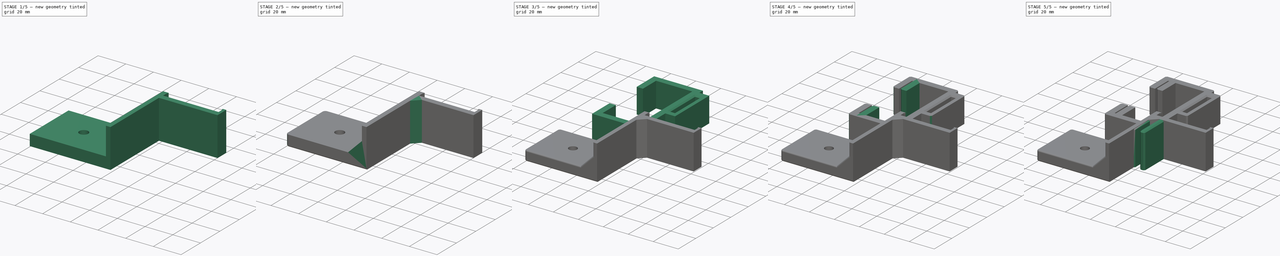
[diagram: build sequence overview — one tinted view per stage of 5, left to right]
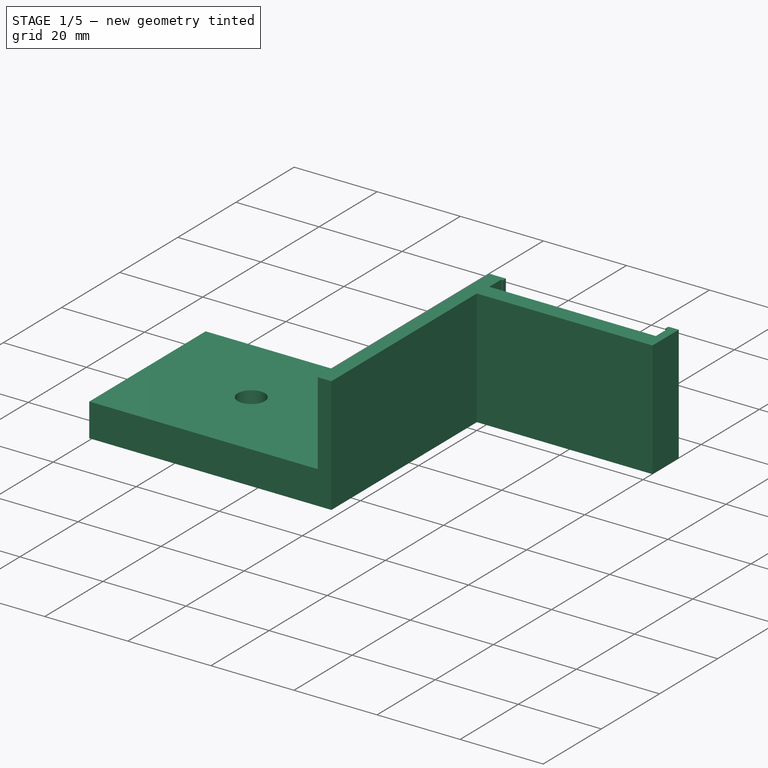
[diagram: stage 1 of 5 — iso view after this stage's code; geometry added in this stage tinted green]
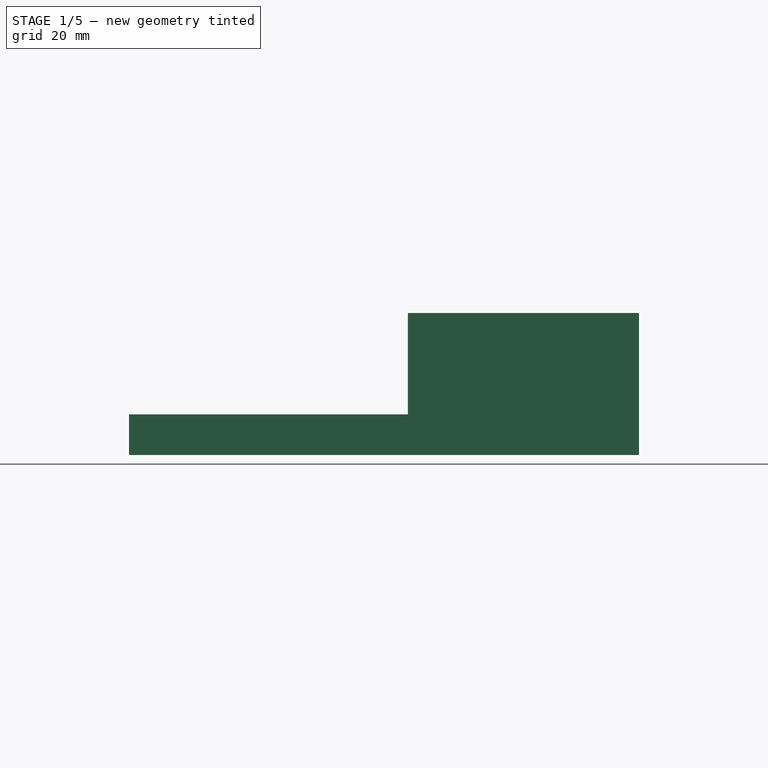
[diagram: stage 1 of 5 — front view after this stage's code; geometry added in this stage tinted green]
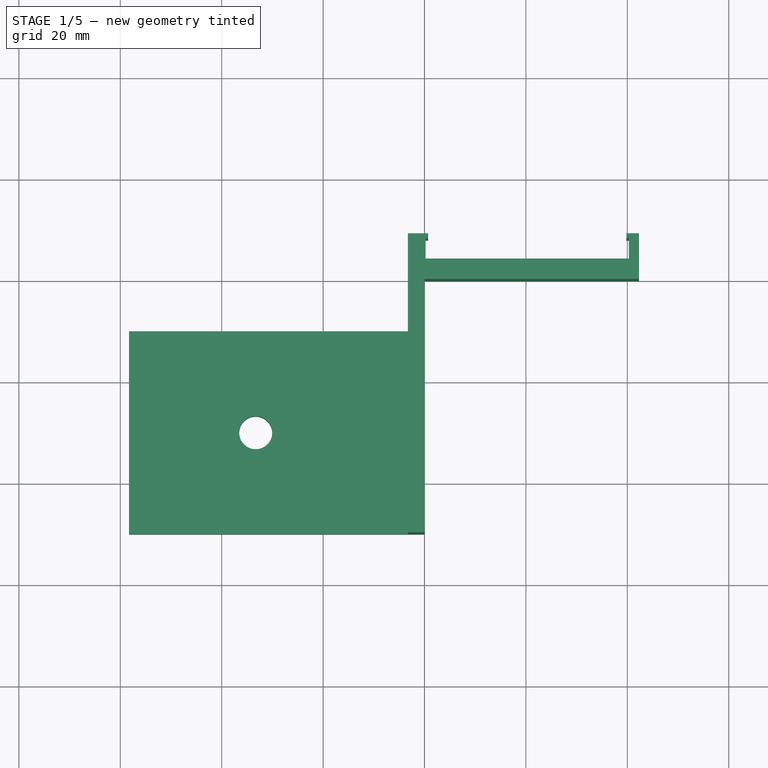
[diagram: stage 1 of 5 — top view after this stage's code; geometry added in this stage tinted green]
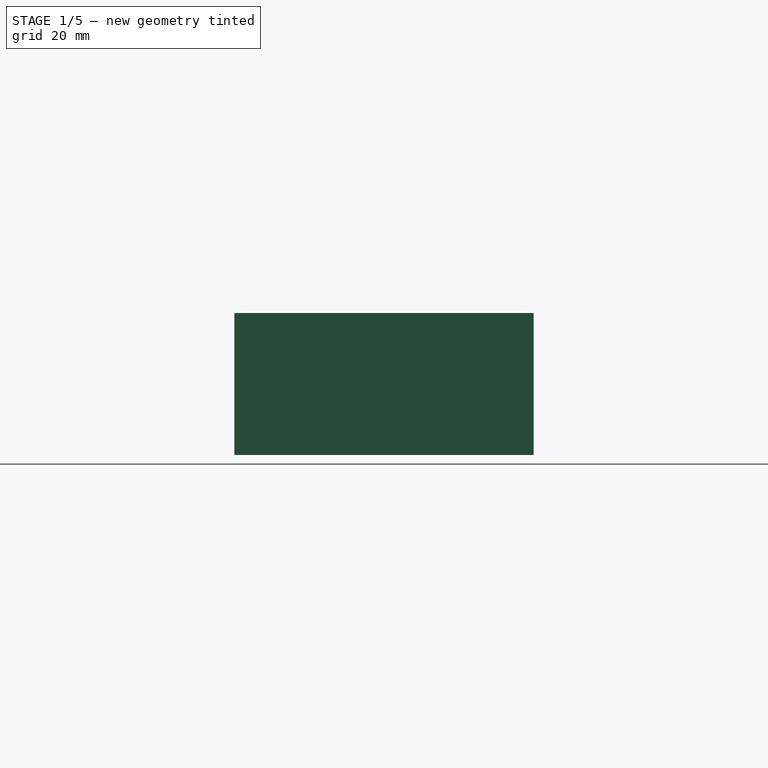
[diagram: stage 1 of 5 — right view after this stage's code; geometry added in this stage tinted green]
FCSTD DOCUMENT  (FreeCAD 1.1R43135 (Git))
Label: ender 3 v3 se rpi side mount
License: All rights reserved
LicenseURL: http://en.wikipedia.org/wiki/All_rights_reserved
objects: Sketcher::SketchObject×9, PartDesign::Pad×7, PartDesign::Chamfer×7, PartDesign::Body×4, App::Point×4, PartDesign::Fillet×4, PartDesign::Pocket×2
note: 82 computed .brp shape members not serialized (recipe doc carries the construction recipe); baked Part::Feature solids carry a one-line shape summary decoded from their .brp

FEATURE [PartDesign::Body] Body002  label="attachment40mfan"
  AllowCompound = false
  Group = -> [Sketch005,Pad003,Chamfer008,Chamfer009]
  Origin = -> Origin004
  Tip = -> Chamfer009
FEATURE [App::Point] Origin007
  Role = Origin
FEATURE [Sketcher::SketchObject] Sketch006
  ArcFitTolerance = 0
  AttachmentSupport = -> [XY_Plane003]
  ExternalTypes = [0]
  FullyConstrained = false
  MakeInternals = false
  MapMode = 5
  sketch-geometry (13):
    g0: LineSegment StartX=-3.29169 StartY=9 StartZ=0 EndX=0.708312 EndY=9 EndZ=0
    g1: LineSegment StartX=0.708312 StartY=8 StartZ=0 EndX=0.708312 EndY=9 EndZ=0
    g2: LineSegment StartX=0.708312 StartY=8 StartZ=0 EndX=0.208312 EndY=8 EndZ=0
    g3: LineSegment StartX=0.208312 StartY=8 StartZ=0 EndX=0.208312 EndY=4 EndZ=0
    g4: LineSegment StartX=0.208312 StartY=4 StartZ=0 EndX=40.3083 EndY=4 EndZ=0
    g5: LineSegment StartX=40.3083 StartY=4 StartZ=0 EndX=40.3083 EndY=8 EndZ=0
    g6: LineSegment StartX=40.3083 StartY=8 StartZ=0 EndX=39.8083 EndY=8 EndZ=0
    g7: LineSegment StartX=39.8083 StartY=8 StartZ=0 EndX=39.8083 EndY=9 EndZ=0
    g8: LineSegment StartX=39.8083 StartY=9 StartZ=0 EndX=42.3083 EndY=9 EndZ=0
    g9: LineSegment StartX=42.3083 StartY=9 StartZ=0 EndX=42.3083 EndY=0 EndZ=0
    g10: LineSegment StartX=-3.29169 StartY=9 StartZ=0 EndX=-3.29169 EndY=4 EndZ=0
    g11: LineSegment StartX=42.3083 StartY=0 StartZ=0 EndX=-3.29169 EndY=0 EndZ=0
    g12: LineSegment StartX=-3.29169 StartY=4 StartZ=0 EndX=-3.29169 EndY=0 EndZ=0
  constraints (39):
    c: Coincident(g2,g1)
    c: Coincident(g3,g2)
    c: Vertical(g3)
    c: Horizontal(g4)
    c: Coincident(g6,g5)
    c: Coincident(g7,g6)
    c: Vertical(g7)
    c: Coincident(g8,g7)
    c: Horizontal(g8)
    c: Coincident(g9,g8)
    c: Vertical(g9)
    c: Coincident(g1,g0)
    c: DistanceY(g5,g5) = 4
    c: DistanceY(g3,g3) = 4
    c: DistanceY(g9,g9) = 9
    c: DistanceX(g8,g8) = 2.5
    c: DistanceY(g7,g7) = 1
    c: DistanceX(g6,g6) = 0.5
    c: Parallel(g8,g6)
    c: Parallel(g9,g5)
    c: DistanceX(g2,g2) = 0.5
    c: DistanceY(g1,g1) = 1
    c: DistanceX(g0,g0) = 4
    c: Angle(g0,g1) = 1.5708
    c: Angle(g3,g2) = 1.5708
    c: Coincident(g4,g3)
    c: Coincident(g5,g4)
    c: Coincident(g10,g0)
    c: Parallel(g3,g10)
    c: Angle(g10,g0) = 1.5708
    c: Horizontal(g11)
    c: Coincident(g11,g9)
    c: DistanceY(g10,g10) = 5
    c: PointOnObject(g12,g-1)
    c: DistanceX(g4,g4) = 40.1
    c: Vertical(g12)
    c: Coincident(g11,g12)
    c: DistanceX(g11,g11) = 45.6  'ClampLength'
    c: Coincident(g12,g10)
FEATURE [PartDesign::Pad] Pad004
  Direction = (0,0,1)
  Length = 28
  Length2 = 10
  Profile = -> Sketch006
  ReferenceAxis = -> Sketch006 [N_Axis]
  Refine = true
  SideType = 0
  Suppressed = false
  Type = 0
  Type2 = 0
FEATURE [Sketcher::SketchObject] Sketch007
  ArcFitTolerance = 1e-06
  AttachmentSupport = -> [Pad004]
  ExternalGeometry = -> [Pad004]
  ExternalTypes = [0]
  FullyConstrained = true
  MakeInternals = false
  MapMode = 5
  Placement = pos=(0,0,0) rot=(1,0,0;1.5708rad)
  sketch-geometry (4):
    g0: LineSegment StartX=-3.29169 StartY=28 StartZ=0 EndX=-3.29169 EndY=0 EndZ=0
    g1: LineSegment StartX=-3.29169 StartY=0 StartZ=0 EndX=0 EndY=0 EndZ=0
    g2: LineSegment StartX=0 StartY=0 StartZ=0 EndX=0 EndY=28 EndZ=0
    g3: LineSegment StartX=0 StartY=28 StartZ=0 EndX=-3.29169 EndY=28 EndZ=0
  constraints (10):
    c: Coincident(g0,g1)
    c: Coincident(g1,g2)
    c: Coincident(g2,g3)
    c: Coincident(g3,g0)
    c: Vertical(g0)
    c: Vertical(g2)
    c: Horizontal(g1)
    c: Horizontal(g3)
    c: Coincident(g0,g-3)
    c: Coincident(g1,g-1)
FEATURE [PartDesign::Pad] Pad005
  BaseFeature = -> Pad004
  Direction = (0,-1,0)
  Length = 50
  Length2 = 10
  Profile = -> Sketch007
  ReferenceAxis = -> Sketch007 [N_Axis]
  Refine = true
  SideType = 0
  Suppressed = false
  Type = 0
  Type2 = 0
FEATURE [Sketcher::SketchObject] Sketch008
  ArcFitTolerance = 1e-06
  AttachmentSupport = -> [Pad005]
  ExternalGeometry = -> [Pad005]
  ExternalTypes = [0]
  FullyConstrained = true
  MakeInternals = false
  MapMode = 5
  Placement = pos=(-3.29169,0,0) rot=(0.57735,-0.57735,-0.57735;2.0944rad)
  sketch-geometry (4):
    g0: LineSegment StartX=10 StartY=0 StartZ=0 EndX=50 EndY=0 EndZ=0
    g1: LineSegment StartX=50 StartY=0 StartZ=0 EndX=50 EndY=8 EndZ=0
    g2: LineSegment StartX=50 StartY=8 StartZ=0 EndX=10 EndY=8 EndZ=0
    g3: LineSegment StartX=10 StartY=8 StartZ=0 EndX=10 EndY=0 EndZ=0
  constraints (11):
    c: Coincident(g0,g1)
    c: Coincident(g1,g2)
    c: Coincident(g2,g3)
    c: Coincident(g3,g0)
    c: Horizontal(g0)
    c: Horizontal(g2)
    c: Vertical(g1)
    c: Vertical(g3)
    c: Distance(g1,g1) = 8
    c: DistanceX(g0,g0) = 40
    c: Coincident(g-3,g0)
FEATURE [PartDesign::Pad] Pad006
  BaseFeature = -> Pad005
  Direction = (-1,0,0)
  Length = 55
  Length2 = 10
  Profile = -> Sketch008
  ReferenceAxis = -> Sketch008 [N_Axis]
  Refine = true
  SideType = 0
  Suppressed = false
  Type = 0
  Type2 = 0
FEATURE [Sketcher::SketchObject] Sketch009
  ArcFitTolerance = 1e-06
  AttachmentSupport = -> [Pad006]
  ExternalGeometry = -> [Pad006]
  ExternalTypes = [0]
  FullyConstrained = true
  MakeInternals = false
  MapMode = 5
  Placement = pos=(0,0,9e-16) rot=(1,0,0;3.14159rad)
  sketch-geometry (1):
    g0: Circle CenterX=-33.2917 CenterY=30 CenterZ=0 NormalX=0 NormalY=0 NormalZ=1 AngleXU=0 Radius=3.25
  constraints (3):
    c: Diameter(g0) = 6.5
    c: DistanceX(g-3,g0) = 25
    c: DistanceY(g0,g-3) = 20
FEATURE [PartDesign::Pocket] Pocket001
  BaseFeature = -> Pad006
  Direction = (0,0,1)
  Length = 5
  Length2 = 5
  Profile = -> Sketch009
  ReferenceAxis = -> Sketch009 [N_Axis]
  Refine = true
  SideType = 0
  Suppressed = false
  Type = 1
  Type2 = 0
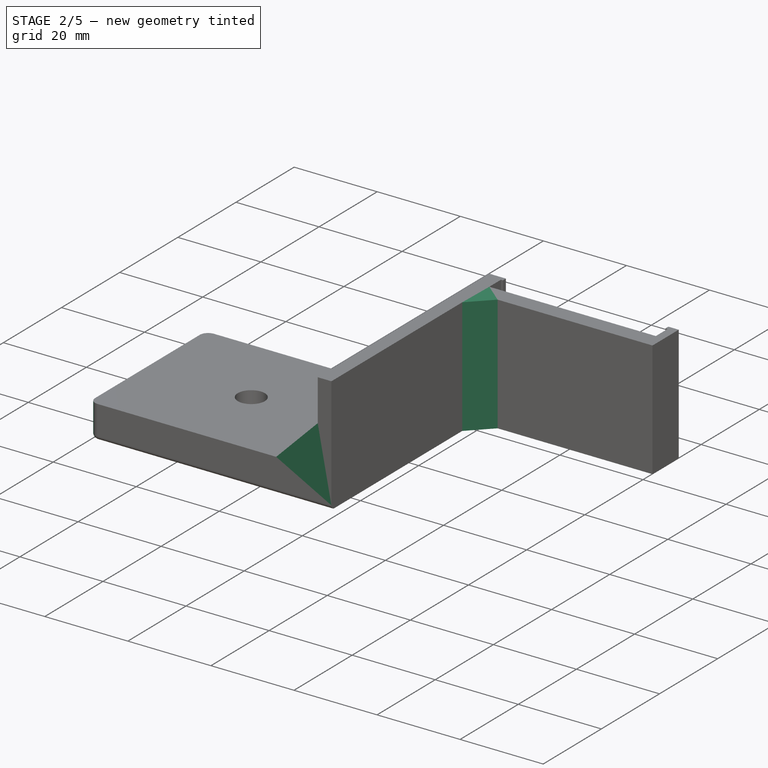
[diagram: stage 2 of 5 — iso view after this stage's code; geometry added in this stage tinted green]
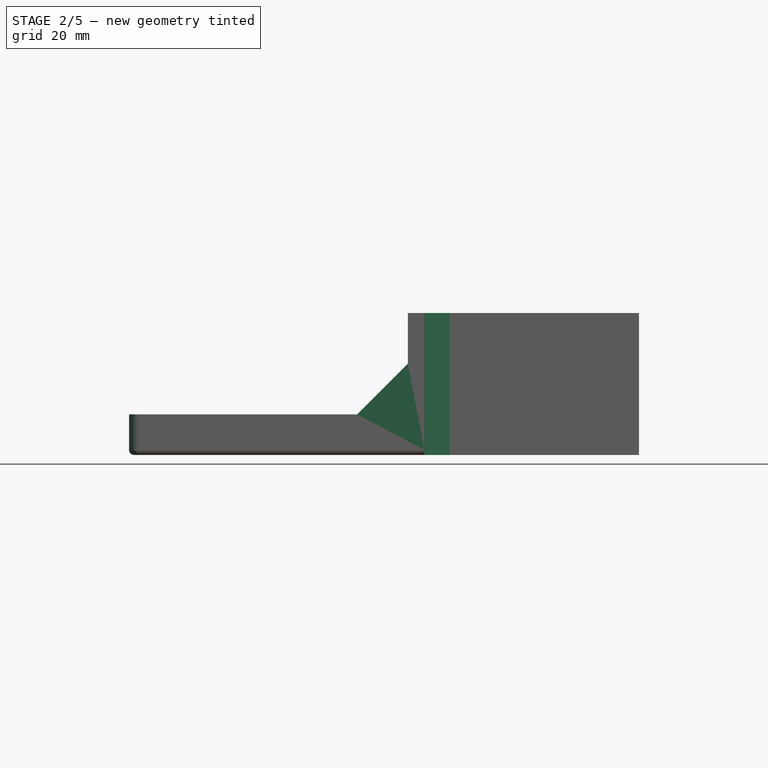
[diagram: stage 2 of 5 — front view after this stage's code; geometry added in this stage tinted green]
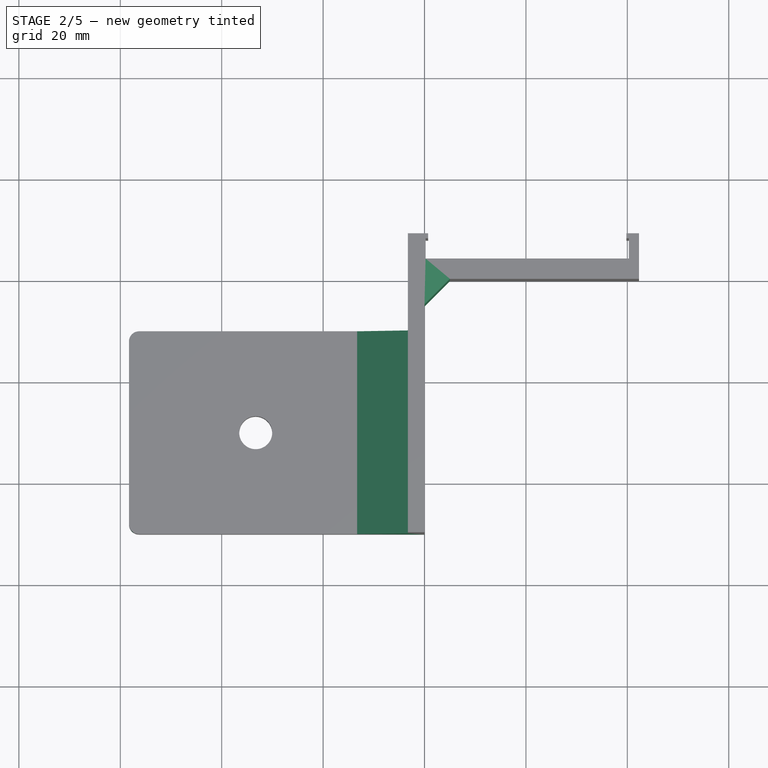
[diagram: stage 2 of 5 — top view after this stage's code; geometry added in this stage tinted green]
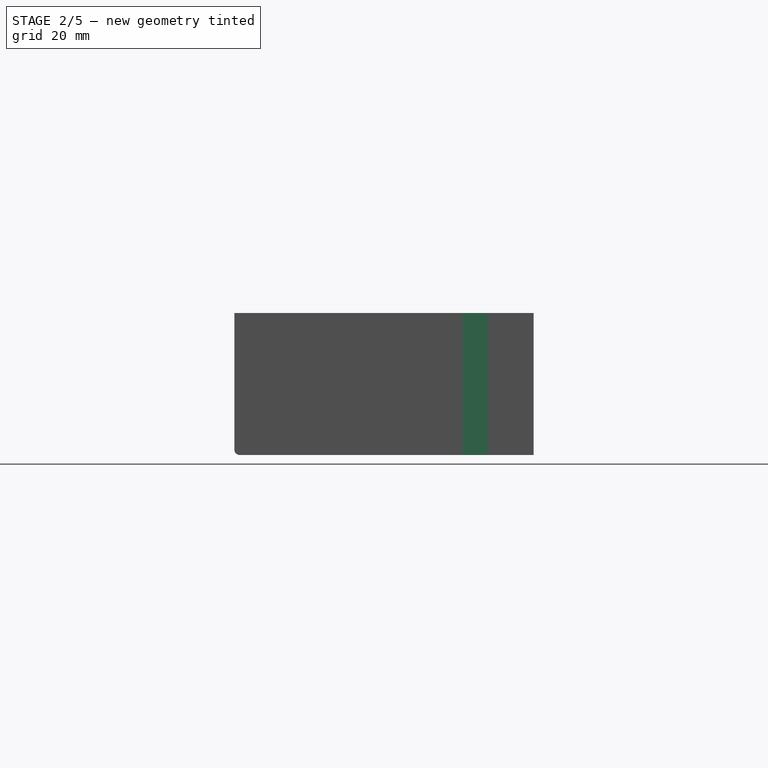
[diagram: stage 2 of 5 — right view after this stage's code; geometry added in this stage tinted green]
FEATURE [PartDesign::Chamfer] Chamfer010
  Angle = 45
  Base = -> Pocket001 [Edge48]
  BaseFeature = -> Pocket001
  ChamferType = 0
  FlipDirection = false
  Refine = true
  Size = 5
  Size2 = 1
  SupportTransform = false
  Suppressed = false
  UseAllEdges = false
FEATURE [PartDesign::Chamfer] Chamfer011
  Angle = 45
  Base = -> Chamfer010 [Edge40]
  BaseFeature = -> Chamfer010
  ChamferType = 0
  FlipDirection = false
  Refine = true
  Size = 10
  Size2 = 1
  SupportTransform = false
  Suppressed = false
  UseAllEdges = false
FEATURE [PartDesign::Fillet] Fillet
  Base = -> Chamfer011 [Edge6,Edge35]
  BaseFeature = -> Chamfer011
  Radius = 2
  Refine = true
  SupportTransform = false
  Suppressed = false
  UseAllEdges = false
FEATURE [PartDesign::Fillet] Fillet001
  Base = -> Fillet [Edge4,Edge19,Edge23,Edge25]
  BaseFeature = -> Fillet
  Radius = 1
  Refine = true
  SupportTransform = false
  Suppressed = false
  UseAllEdges = false
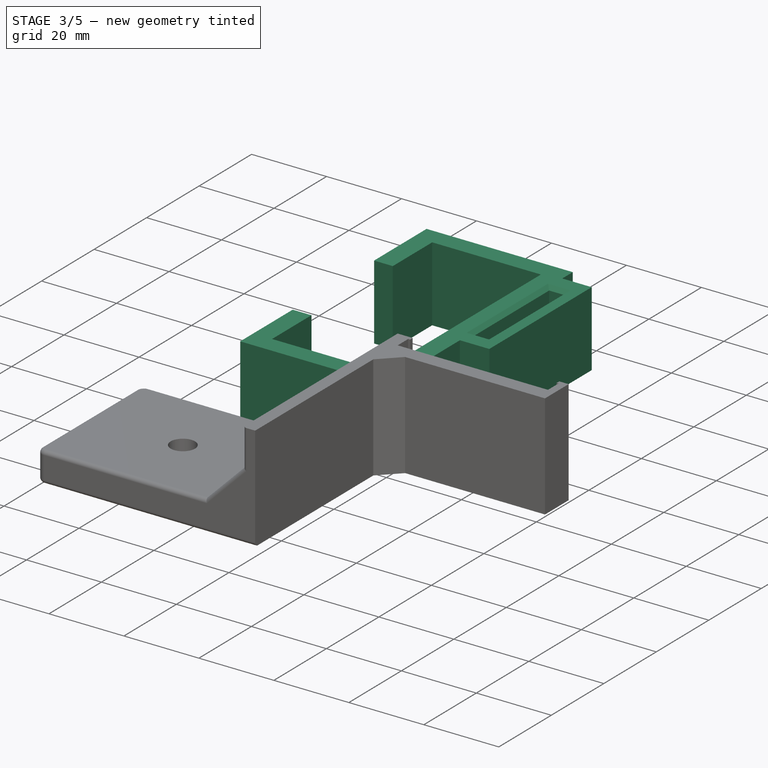
[diagram: stage 3 of 5 — iso view after this stage's code; geometry added in this stage tinted green]
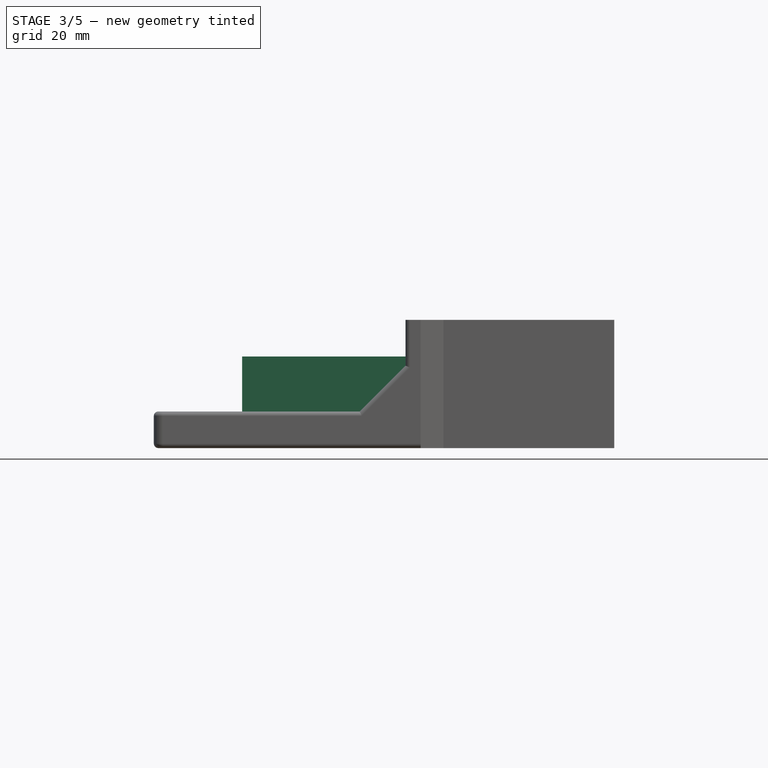
[diagram: stage 3 of 5 — front view after this stage's code; geometry added in this stage tinted green]
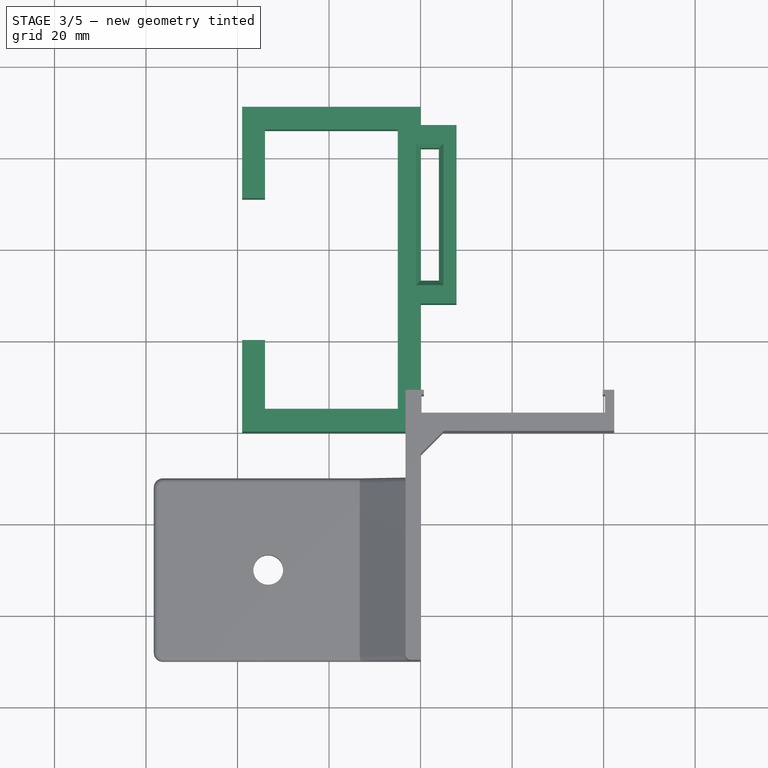
[diagram: stage 3 of 5 — top view after this stage's code; geometry added in this stage tinted green]
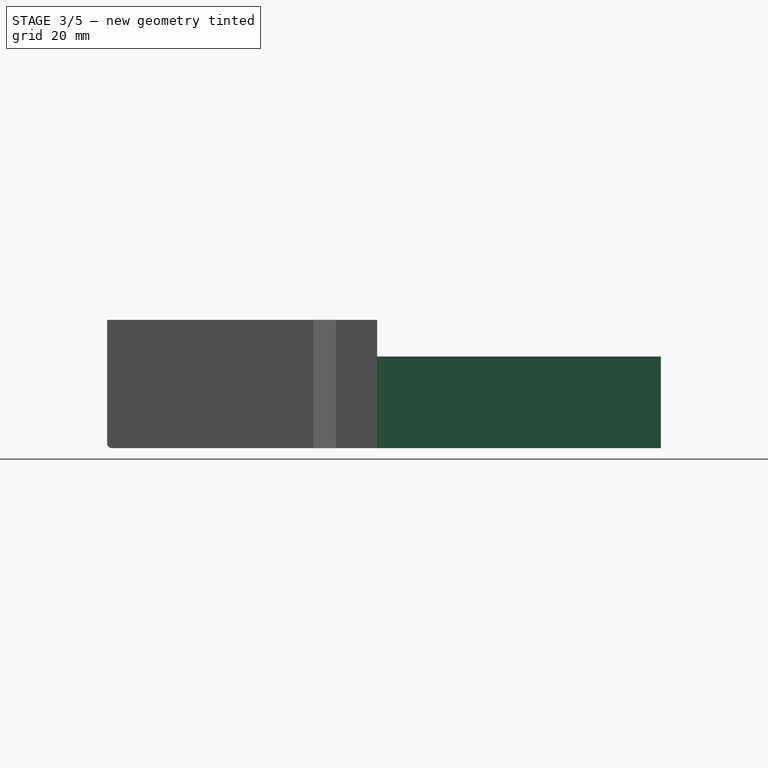
[diagram: stage 3 of 5 — right view after this stage's code; geometry added in this stage tinted green]
FEATURE [PartDesign::Body] Body001  label="attachment"
  AllowCompound = false
  Group = -> [Sketch004,Pad002,Chamfer,Chamfer007]
  Origin = -> Origin001
  Tip = -> Chamfer007
FEATURE [App::Point] Origin002  label="Origin"
  Role = Origin
FEATURE [App::Point] Origin003  label="Origin"
  Role = Origin
FEATURE [App::Point] Origin005
  Role = Origin
FEATURE [Sketcher::SketchObject] Sketch005
  ArcFitTolerance = 0
  AttachmentSupport = -> [XY_Plane002]
  ExternalTypes = [0]
  FullyConstrained = true
  MakeInternals = false
  MapMode = 5
  sketch-geometry (20):
    g0: LineSegment StartX=-39 StartY=71 StartZ=0 EndX=0 EndY=71 EndZ=0
    g1: LineSegment StartX=0 StartY=71 StartZ=0 EndX=0 EndY=67 EndZ=0
    g2: LineSegment StartX=0 StartY=0 StartZ=0 EndX=-39 EndY=0 EndZ=0
    g3: LineSegment StartX=-39 StartY=0 StartZ=0 EndX=-39 EndY=20 EndZ=0
    g4: LineSegment StartX=-39 StartY=20 StartZ=0 EndX=-34 EndY=20 EndZ=0
    g5: LineSegment StartX=-34 StartY=20 StartZ=0 EndX=-34 EndY=5 EndZ=0
    g6: LineSegment StartX=-34 StartY=5 StartZ=0 EndX=-5 EndY=5 EndZ=0
    g7: LineSegment StartX=-5 StartY=5 StartZ=0 EndX=-5 EndY=66 EndZ=0
    g8: LineSegment StartX=-5 StartY=66 StartZ=0 EndX=-34 EndY=66 EndZ=0
    g9: LineSegment StartX=-34 StartY=66 StartZ=0 EndX=-34 EndY=51 EndZ=0
    g10: LineSegment StartX=-34 StartY=51 StartZ=0 EndX=-39 EndY=51 EndZ=0
    g11: LineSegment StartX=-39 StartY=51 StartZ=0 EndX=-39 EndY=71 EndZ=0
    g12: LineSegment StartX=0 StartY=28 StartZ=0 EndX=7.85 EndY=28 EndZ=0
    g13: LineSegment StartX=7.85 StartY=28 StartZ=0 EndX=7.85 EndY=67 EndZ=0
    g14: LineSegment StartX=7.85 StartY=67 StartZ=0 EndX=0 EndY=67 EndZ=0
    g15: LineSegment StartX=0 StartY=62 StartZ=0 EndX=4 EndY=62 EndZ=0
    g16: LineSegment StartX=4 StartY=62 StartZ=0 EndX=4 EndY=33 EndZ=0
    g17: LineSegment StartX=4 StartY=33 StartZ=0 EndX=0 EndY=33 EndZ=0
    g18: LineSegment StartX=0 StartY=62 StartZ=0 EndX=0 EndY=33 EndZ=0
    g19: LineSegment StartX=0 StartY=28 StartZ=0 EndX=0 EndY=0 EndZ=0
  constraints (59):
    c: Horizontal(g0)
    c: Coincident(g0,g1)
    c: Vertical(g1)
    c: Coincident(g19,g2)
    c: Horizontal(g2)
    c: Coincident(g2,g3)
    c: Vertical(g3)
    c: Coincident(g3,g4)
    c: Horizontal(g4)
    c: Coincident(g4,g5)
    c: Vertical(g5)
    c: Coincident(g5,g6)
    c: Horizontal(g6)
    c: Coincident(g6,g7)
    c: Vertical(g7)
    c: Coincident(g7,g8)
    c: Horizontal(g8)
    c: Coincident(g8,g9)
    c: Vertical(g9)
    c: Coincident(g9,g10)
    c: Horizontal(g10)
    c: Coincident(g10,g11)
    c: Coincident(g11,g0)
    c: Vertical(g11)
    c: Vertical(g10,g3)
    c: Equal(g10,g4)
    c: Distance(g10,g10) = 5
    c: DistanceY(g2,g5) = 5
    c: DistanceY(g8,g0) = 5
    c: DistanceX(g7,g0) = 5
    c: DistanceX(g8,g8) = 29
    c: Equal(g9,g5)
    c: DistanceY(g9,g9) = 15
    c: DistanceY(g7,g7) = 61
    c: Coincident(g19,g-1)
    c: PointOnObject(g12,g1)
    c: Horizontal(g12)
    c: Coincident(g12,g13)
    c: Vertical(g13)
    c: Coincident(g13,g14)
    c: Horizontal(g14)
    c: Horizontal(g15)
    c: Coincident(g15,g16)
    c: Vertical(g16)
    c: Coincident(g16,g17)
    c: PointOnObject(g17,g1)
    c: Horizontal(g17)
    c: Coincident(g1,g14)
    c: DistanceY(g15,g1) = 5
    c: Distance(g17,g12) = 5
    c: DistanceX(g16,g12) = 3.85
    c: DistanceY(g16,g16) = 29
    c: Coincident(g15,g18)
    c: Vertical(g18)
    c: Coincident(g18,g17)
    c: DistanceX(g15,g15) = 4
    c: DistanceY(g2,g12) = 28
    c: PointOnObject(g19,g-2)
    c: Coincident(g12,g19)
FEATURE [PartDesign::Pad] Pad003
  Direction = (0,0,1)
  Length = 20
  Length2 = 10
  Profile = -> Sketch005
  ReferenceAxis = -> Sketch005 [N_Axis]
  SideType = 0
  Suppressed = false
  Type = 0
  Type2 = 0
FEATURE [PartDesign::Chamfer] Chamfer008
  Angle = 45
  Base = -> Pad003 [Edge59,Edge54,Edge57,Edge51,Edge58,Edge55,Edge60,Edge52]
  BaseFeature = -> Pad003
  ChamferType = 0
  FlipDirection = false
  Size = 1
  Size2 = 1
  SupportTransform = false
  Suppressed = false
  UseAllEdges = false
FEATURE [PartDesign::Fillet] Fillet002
  Base = -> Fillet001 [Edge3,Edge5,Edge7]
  BaseFeature = -> Fillet001
  Radius = 1
  Refine = true
  SupportTransform = false
  Suppressed = false
  UseAllEdges = false
FEATURE [PartDesign::Fillet] Fillet003
  Base = -> Fillet002 [Edge67]
  BaseFeature = -> Fillet002
  Radius = 1
  Refine = true
  SupportTransform = false
  Suppressed = false
  UseAllEdges = false
FEATURE [PartDesign::Body] Body003  label="mount001"
  AllowCompound = false
  Group = -> [Sketch006,Pad004,Sketch007,Pad005,Sketch008,Pad006,Sketch009,Pocket001,Chamfer010,Chamfer011,Fillet,Fillet001,Fillet002,Fillet003]
  Origin = -> Origin006
  Placement = pos=(0,-13.599,0) rot=(0,1,0;3.05258rad)
  Tip = -> Fillet003
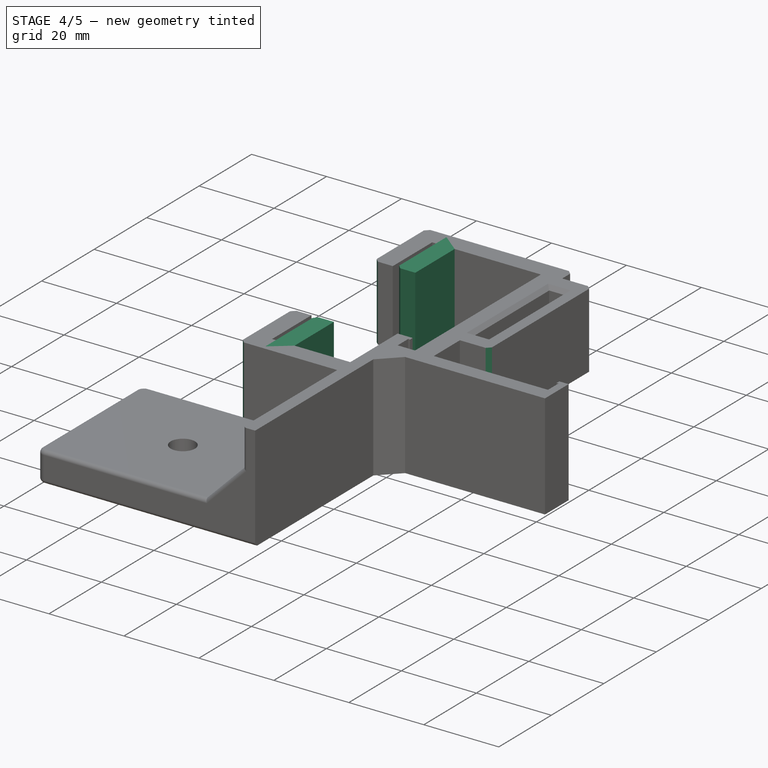
[diagram: stage 4 of 5 — iso view after this stage's code; geometry added in this stage tinted green]
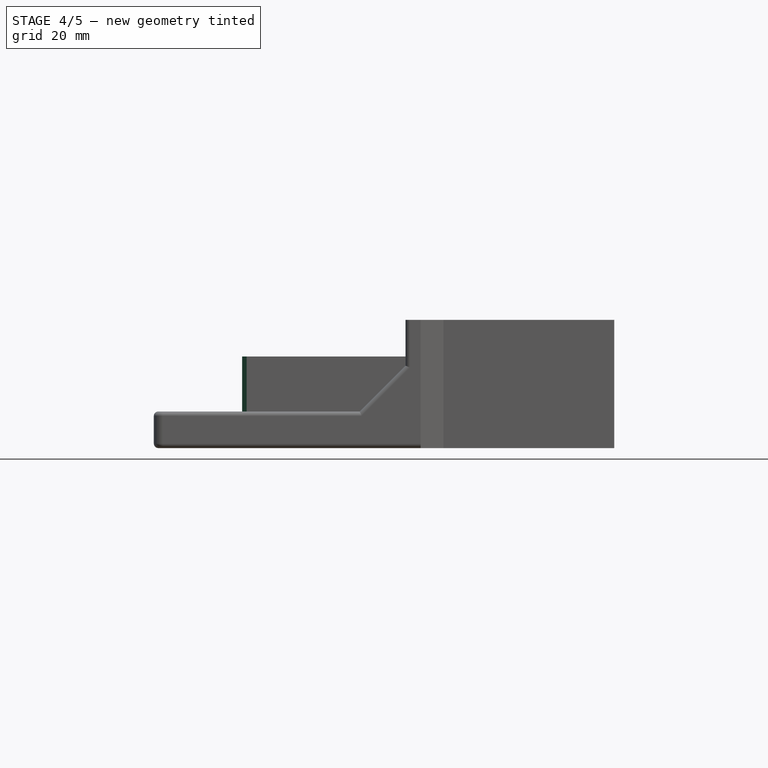
[diagram: stage 4 of 5 — front view after this stage's code; geometry added in this stage tinted green]
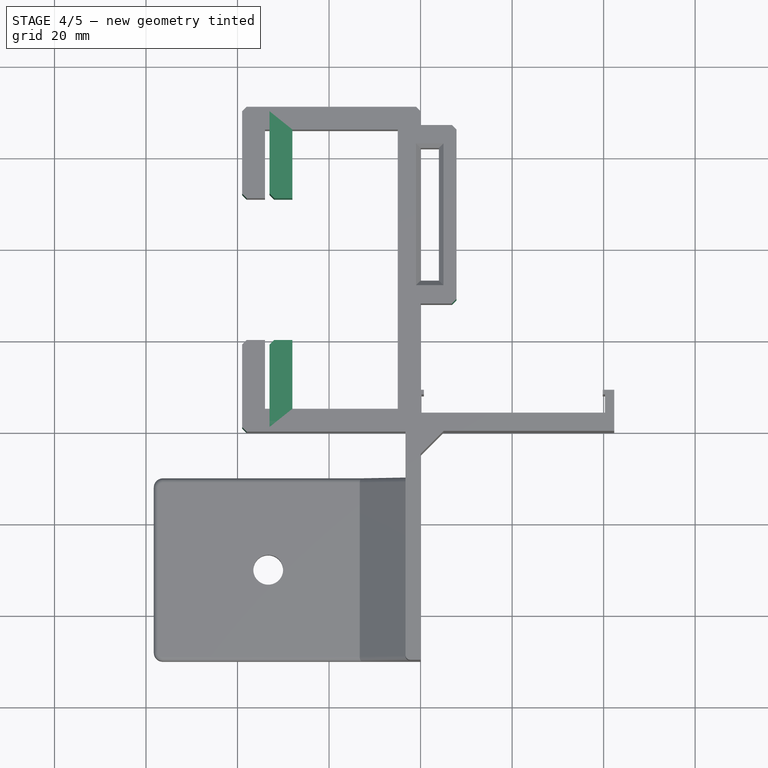
[diagram: stage 4 of 5 — top view after this stage's code; geometry added in this stage tinted green]
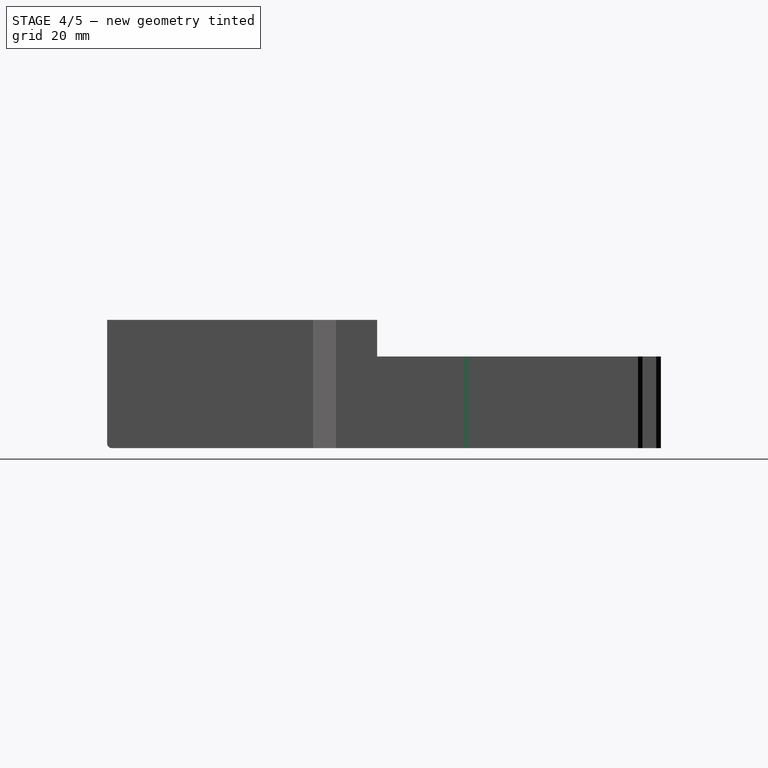
[diagram: stage 4 of 5 — right view after this stage's code; geometry added in this stage tinted green]
FEATURE [Sketcher::SketchObject] Sketch004
  ArcFitTolerance = 0
  AttachmentSupport = -> [XY_Plane]
  ExternalTypes = [0]
  FullyConstrained = true
  MakeInternals = false
  MapMode = 5
  sketch-geometry (20):
    g0: LineSegment StartX=-33 StartY=71 StartZ=0 EndX=0 EndY=71 EndZ=0
    g1: LineSegment StartX=0 StartY=71 StartZ=0 EndX=0 EndY=67 EndZ=0
    g2: LineSegment StartX=0 StartY=0 StartZ=0 EndX=-33 EndY=0 EndZ=0
    g3: LineSegment StartX=-33 StartY=0 StartZ=0 EndX=-33 EndY=20 EndZ=0
    g4: LineSegment StartX=-33 StartY=20 StartZ=0 EndX=-28 EndY=20 EndZ=0
    g5: LineSegment StartX=-28 StartY=20 StartZ=0 EndX=-28 EndY=5 EndZ=0
    g6: LineSegment StartX=-28 StartY=5 StartZ=0 EndX=-5 EndY=5 EndZ=0
    g7: LineSegment StartX=-5 StartY=5 StartZ=0 EndX=-5 EndY=66 EndZ=0
    g8: LineSegment StartX=-5 StartY=66 StartZ=0 EndX=-28 EndY=66 EndZ=0
    g9: LineSegment StartX=-28 StartY=66 StartZ=0 EndX=-28 EndY=51 EndZ=0
    g10: LineSegment StartX=-28 StartY=51 StartZ=0 EndX=-33 EndY=51 EndZ=0
    g11: LineSegment StartX=-33 StartY=51 StartZ=0 EndX=-33 EndY=71 EndZ=0
    g12: LineSegment StartX=0 StartY=28 StartZ=0 EndX=7.85 EndY=28 EndZ=0
    g13: LineSegment StartX=7.85 StartY=28 StartZ=0 EndX=7.85 EndY=67 EndZ=0
    g14: LineSegment StartX=7.85 StartY=67 StartZ=0 EndX=0 EndY=67 EndZ=0
    g15: LineSegment StartX=0 StartY=62 StartZ=0 EndX=4 EndY=62 EndZ=0
    g16: LineSegment StartX=4 StartY=62 StartZ=0 EndX=4 EndY=33 EndZ=0
    g17: LineSegment StartX=4 StartY=33 StartZ=0 EndX=0 EndY=33 EndZ=0
    g18: LineSegment StartX=0 StartY=62 StartZ=0 EndX=0 EndY=33 EndZ=0
    g19: LineSegment StartX=0 StartY=28 StartZ=0 EndX=0 EndY=0 EndZ=0
  constraints (59):
    c: Horizontal(g0)
    c: Coincident(g0,g1)
    c: Vertical(g1)
    c: Coincident(g19,g2)
    c: Horizontal(g2)
    c: Coincident(g2,g3)
    c: Vertical(g3)
    c: Coincident(g3,g4)
    c: Horizontal(g4)
    c: Coincident(g4,g5)
    c: Vertical(g5)
    c: Coincident(g5,g6)
    c: Horizontal(g6)
    c: Coincident(g6,g7)
    c: Vertical(g7)
    c: Coincident(g7,g8)
    c: Horizontal(g8)
    c: Coincident(g8,g9)
    c: Vertical(g9)
    c: Coincident(g9,g10)
    c: Horizontal(g10)
    c: Coincident(g10,g11)
    c: Coincident(g11,g0)
    c: Vertical(g11)
    c: Vertical(g10,g3)
    c: Equal(g10,g4)
    c: Distance(g10,g10) = 5
    c: DistanceY(g2,g5) = 5
    c: DistanceY(g8,g0) = 5
    c: DistanceX(g7,g0) = 5
    c: DistanceX(g8,g8) = 23
    c: Equal(g9,g5)
    c: DistanceY(g9,g9) = 15
    c: DistanceY(g7,g7) = 61
    c: Coincident(g19,g-1)
    c: PointOnObject(g12,g1)
    c: Horizontal(g12)
    c: Coincident(g12,g13)
    c: Vertical(g13)
    c: Coincident(g13,g14)
    c: Horizontal(g14)
    c: Horizontal(g15)
    c: Coincident(g15,g16)
    c: Vertical(g16)
    c: Coincident(g16,g17)
    c: PointOnObject(g17,g1)
    c: Horizontal(g17)
    c: Coincident(g1,g14)
    c: DistanceY(g15,g1) = 5
    c: Distance(g17,g12) = 5
    c: DistanceX(g16,g12) = 3.85
    c: DistanceY(g16,g16) = 29
    c: Coincident(g15,g18)
    c: Vertical(g18)
    c: Coincident(g18,g17)
    c: DistanceX(g15,g15) = 4
    c: DistanceY(g2,g12) = 28
    c: PointOnObject(g19,g-2)
    c: Coincident(g12,g19)
FEATURE [PartDesign::Pad] Pad002
  Direction = (0,0,1)
  Length = 20
  Length2 = 10
  Profile = -> Sketch004
  ReferenceAxis = -> Sketch004 [N_Axis]
  SideType = 0
  Suppressed = false
  Type = 0
  Type2 = 0
FEATURE [PartDesign::Body] Body  label="mount"
  AllowCompound = false
  Group = -> [Sketch,Pad,Sketch002,Pad001,Sketch003,Pocket,Chamfer006]
  Origin = -> Origin
  Tip = -> Chamfer006
FEATURE [PartDesign::Chamfer] Chamfer
  Angle = 45
  Base = -> Pad002 [Edge59,Edge54,Edge57,Edge51,Edge58,Edge55,Edge60,Edge52]
  BaseFeature = -> Pad002
  ChamferType = 0
  FlipDirection = false
  Size = 1
  Size2 = 1
  SupportTransform = false
  Suppressed = false
  UseAllEdges = false
FEATURE [PartDesign::Chamfer] Chamfer007
  Angle = 45
  Base = -> Chamfer [Edge73,Edge75,Edge76,Edge72,Edge71,Edge64,Edge63,Edge62]
  BaseFeature = -> Chamfer
  ChamferType = 0
  FlipDirection = false
  Size = 1
  Size2 = 1
  SupportTransform = false
  Suppressed = false
  UseAllEdges = false
FEATURE [PartDesign::Chamfer] Chamfer009
  Angle = 45
  Base = -> Chamfer008 [Edge73,Edge75,Edge76,Edge72,Edge71,Edge64,Edge63,Edge62]
  BaseFeature = -> Chamfer008
  ChamferType = 0
  FlipDirection = false
  Size = 1
  Size2 = 1
  SupportTransform = false
  Suppressed = false
  UseAllEdges = false
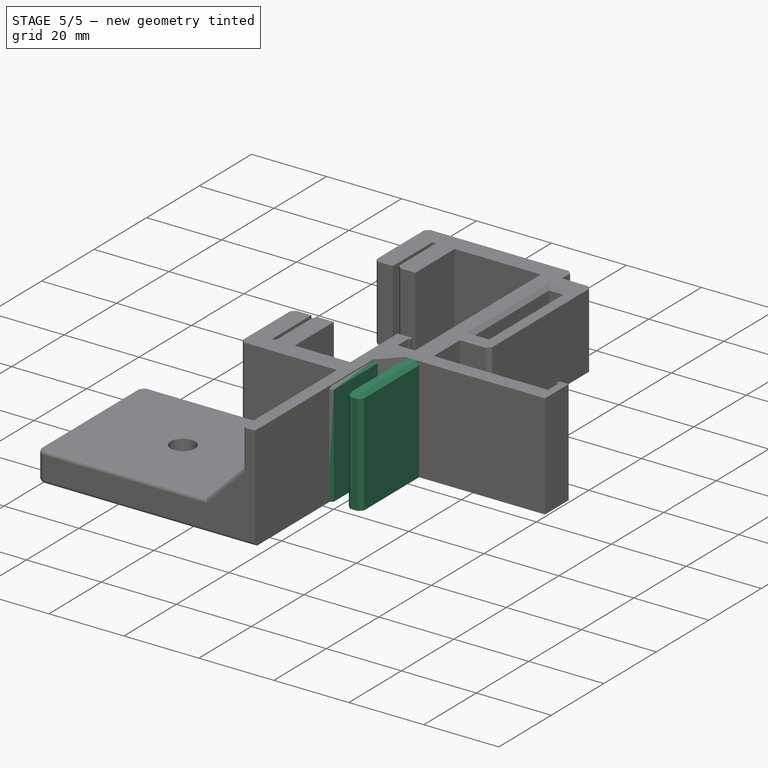
[diagram: stage 5 of 5 — iso view after this stage's code; geometry added in this stage tinted green]
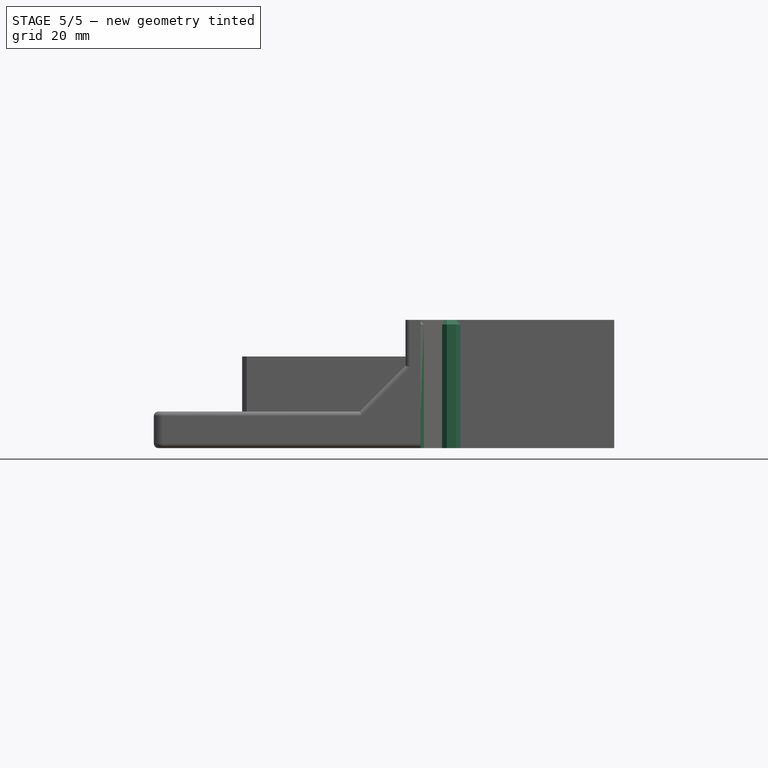
[diagram: stage 5 of 5 — front view after this stage's code; geometry added in this stage tinted green]
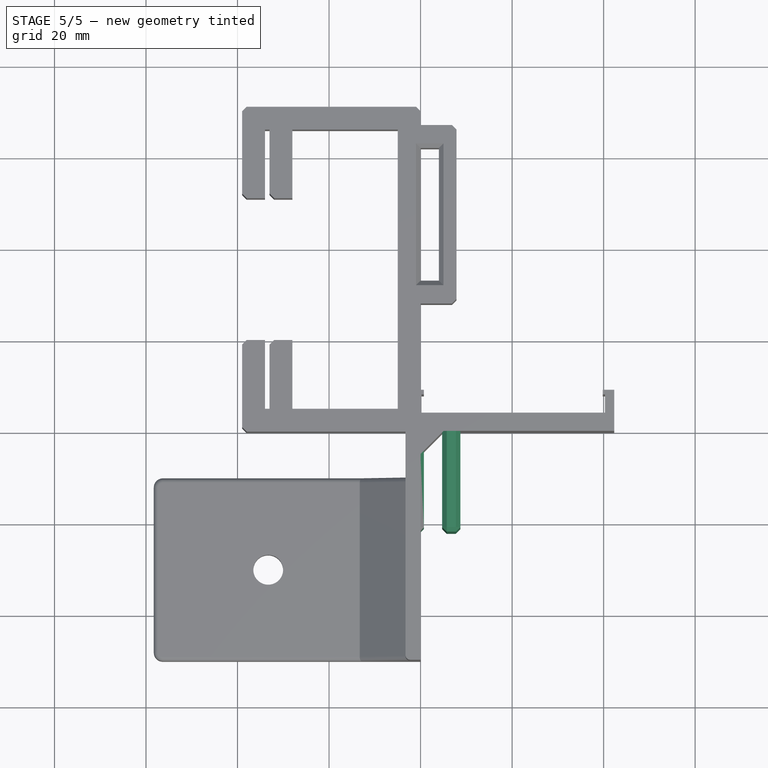
[diagram: stage 5 of 5 — top view after this stage's code; geometry added in this stage tinted green]
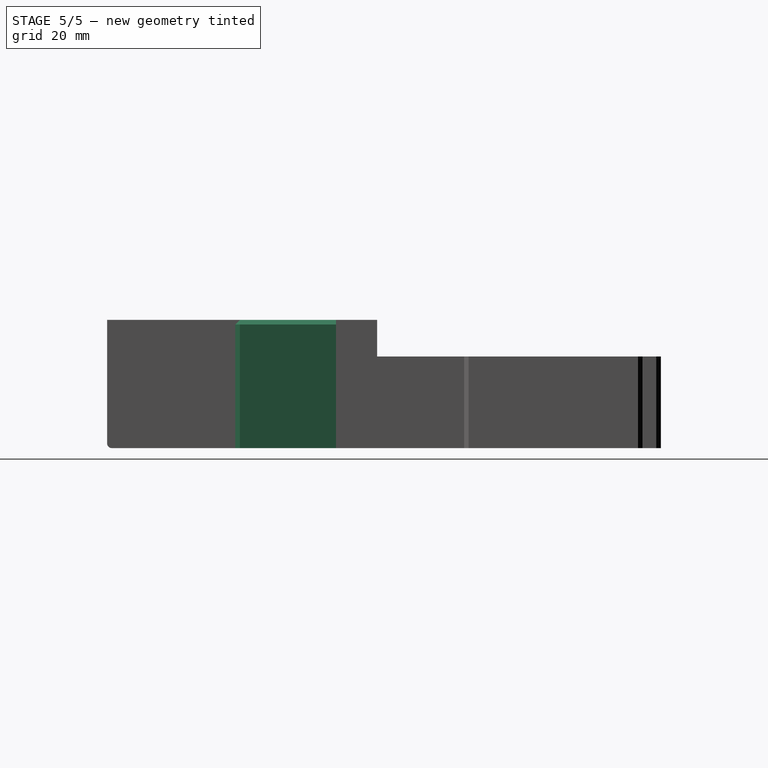
[diagram: stage 5 of 5 — right view after this stage's code; geometry added in this stage tinted green]
FEATURE [Sketcher::SketchObject] Sketch
  ArcFitTolerance = 0
  AttachmentSupport = -> [XY_Plane001]
  ExternalTypes = [0]
  FullyConstrained = false
  MakeInternals = false
  MapMode = 5
  sketch-geometry (13):
    g0: LineSegment StartX=-3.29169 StartY=9 StartZ=0 EndX=0.708312 EndY=9 EndZ=0
    g1: LineSegment StartX=0.708312 StartY=8 StartZ=0 EndX=0.708312 EndY=9 EndZ=0
    g2: LineSegment StartX=0.708312 StartY=8 StartZ=0 EndX=0.208312 EndY=8 EndZ=0
    g3: LineSegment StartX=0.208312 StartY=8 StartZ=0 EndX=0.208312 EndY=4 EndZ=0
    g4: LineSegment StartX=0.208312 StartY=4 StartZ=0 EndX=40.3083 EndY=4 EndZ=0
    g5: LineSegment StartX=40.3083 StartY=4 StartZ=0 EndX=40.3083 EndY=8 EndZ=0
    g6: LineSegment StartX=40.3083 StartY=8 StartZ=0 EndX=39.8083 EndY=8 EndZ=0
    g7: LineSegment StartX=39.8083 StartY=8 StartZ=0 EndX=39.8083 EndY=9 EndZ=0
    g8: LineSegment StartX=39.8083 StartY=9 StartZ=0 EndX=42.3083 EndY=9 EndZ=0
    g9: LineSegment StartX=42.3083 StartY=9 StartZ=0 EndX=42.3083 EndY=0 EndZ=0
    g10: LineSegment StartX=-3.29169 StartY=9 StartZ=0 EndX=-3.29169 EndY=4 EndZ=0
    g11: LineSegment StartX=42.3083 StartY=0 StartZ=0 EndX=-3.29169 EndY=0 EndZ=0
    g12: LineSegment StartX=-3.29169 StartY=4 StartZ=0 EndX=-3.29169 EndY=0 EndZ=0
  constraints (39):
    c: Coincident(g2,g1)
    c: Coincident(g3,g2)
    c: Vertical(g3)
    c: Horizontal(g4)
    c: Coincident(g6,g5)
    c: Coincident(g7,g6)
    c: Vertical(g7)
    c: Coincident(g8,g7)
    c: Horizontal(g8)
    c: Coincident(g9,g8)
    c: Vertical(g9)
    c: Coincident(g1,g0)
    c: DistanceY(g5,g5) = 4
    c: DistanceY(g3,g3) = 4
    c: DistanceY(g9,g9) = 9
    c: DistanceX(g8,g8) = 2.5
    c: DistanceY(g7,g7) = 1
    c: DistanceX(g6,g6) = 0.5
    c: Parallel(g8,g6)
    c: Parallel(g9,g5)
    c: DistanceX(g2,g2) = 0.5
    c: DistanceY(g1,g1) = 1
    c: DistanceX(g0,g0) = 4
    c: Angle(g0,g1) = 1.5708
    c: Angle(g3,g2) = 1.5708
    c: Coincident(g4,g3)
    c: Coincident(g5,g4)
    c: Coincident(g10,g0)
    c: Parallel(g3,g10)
    c: Angle(g10,g0) = 1.5708
    c: Horizontal(g11)
    c: Coincident(g11,g9)
    c: DistanceY(g10,g10) = 5
    c: PointOnObject(g12,g-1)
    c: DistanceX(g4,g4) = 40.1
    c: Vertical(g12)
    c: Coincident(g11,g12)
    c: DistanceX(g11,g11) = 45.6  'ClampLength'
    c: Coincident(g12,g10)
FEATURE [PartDesign::Pad] Pad
  Direction = (0,0,1)
  Length = 28
  Length2 = 10
  Profile = -> Sketch
  ReferenceAxis = -> Sketch [N_Axis]
  Refine = true
  SideType = 0
  Suppressed = false
  Type = 0
  Type2 = 0
FEATURE [Sketcher::SketchObject] Sketch002
  ArcFitTolerance = 0
  AttachmentSupport = -> [Pad]
  ExternalGeometry = -> [Pad]
  ExternalTypes = [0]
  FullyConstrained = true
  MakeInternals = false
  MapMode = 5
  Placement = pos=(0,0,0) rot=(1,0,0;1.5708rad)
  sketch-geometry (4):
    g0: LineSegment StartX=-3.29169 StartY=28 StartZ=0 EndX=-3.29169 EndY=0 EndZ=0
    g1: LineSegment StartX=-3.29169 StartY=0 StartZ=0 EndX=8.70831 EndY=0 EndZ=0
    g2: LineSegment StartX=8.70831 StartY=0 StartZ=0 EndX=8.70831 EndY=28 EndZ=0
    g3: LineSegment StartX=8.70831 StartY=28 StartZ=0 EndX=-3.29169 EndY=28 EndZ=0
  constraints (11):
    c: Coincident(g0,g1)
    c: Coincident(g1,g2)
    c: Coincident(g2,g3)
    c: Coincident(g3,g0)
    c: Vertical(g0)
    c: Vertical(g2)
    c: Horizontal(g1)
    c: Horizontal(g3)
    c: Coincident(g0,g-3)
    c: PointOnObject(g1,g-4)
    c: DistanceX(g3,g3) = 12
FEATURE [PartDesign::Pad] Pad001
  BaseFeature = -> Pad
  Direction = (0,-1,2e-16)
  Length = 22
  Length2 = 10
  Profile = -> Sketch002
  ReferenceAxis = -> Sketch002 [N_Axis]
  Refine = true
  SideType = 0
  Suppressed = false
  Type = 0
  Type2 = 0
FEATURE [Sketcher::SketchObject] Sketch003
  ArcFitTolerance = 0
  AttachmentSupport = -> [Pad001]
  ExternalGeometry = -> [Pad001]
  ExternalTypes = [0]
  FullyConstrained = true
  MakeInternals = false
  MapMode = 5
  Placement = pos=(0,-22,0) rot=(1,0,0;1.5708rad)
  sketch-geometry (4):
    g0: LineSegment StartX=0.708312 StartY=28 StartZ=0 EndX=0.708312 EndY=3.6e-15 EndZ=0
    g1: LineSegment StartX=0.708312 StartY=3.6e-15 StartZ=0 EndX=4.70831 EndY=3.6e-15 EndZ=0
    g2: LineSegment StartX=4.70831 StartY=3.6e-15 StartZ=0 EndX=4.70831 EndY=28 EndZ=0
    g3: LineSegment StartX=4.70831 StartY=28 StartZ=0 EndX=0.708312 EndY=28 EndZ=0
  constraints (12):
    c: Coincident(g0,g1)
    c: Coincident(g1,g2)
    c: Coincident(g2,g3)
    c: Coincident(g3,g0)
    c: Vertical(g0)
    c: Vertical(g2)
    c: Horizontal(g1)
    c: Horizontal(g3)
    c: PointOnObject(g0,g-3)
    c: PointOnObject(g1,g-4)
    c: DistanceX(g1,g1) = 4
    c: DistanceX(g-4,g0) = 4
FEATURE [PartDesign::Pocket] Pocket
  BaseFeature = -> Pad001
  Direction = (0,1,-2e-16)
  Length = 22
  Length2 = 5
  Profile = -> Sketch003
  ReferenceAxis = -> Sketch003 [N_Axis]
  SideType = 0
  Suppressed = false
  Type = 0
  Type2 = 0
FEATURE [PartDesign::Chamfer] Chamfer006
  Angle = 45
  Base = -> Pocket [Edge1,Edge7,Edge6,Edge41,Edge39,Edge40,Edge36,Edge37,Edge35,Edge46,Edge45,Edge48]
  BaseFeature = -> Pocket
  ChamferType = 0
  FlipDirection = false
  Size = 1
  Size2 = 1
  SupportTransform = false
  Suppressed = false
  UseAllEdges = false
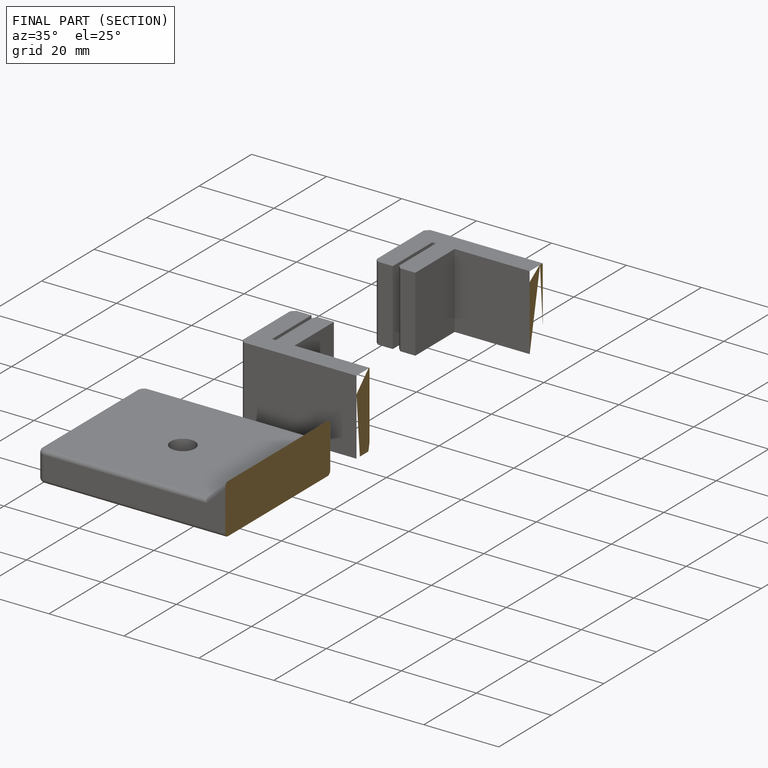
[diagram: finished part — half-section view (interior)]
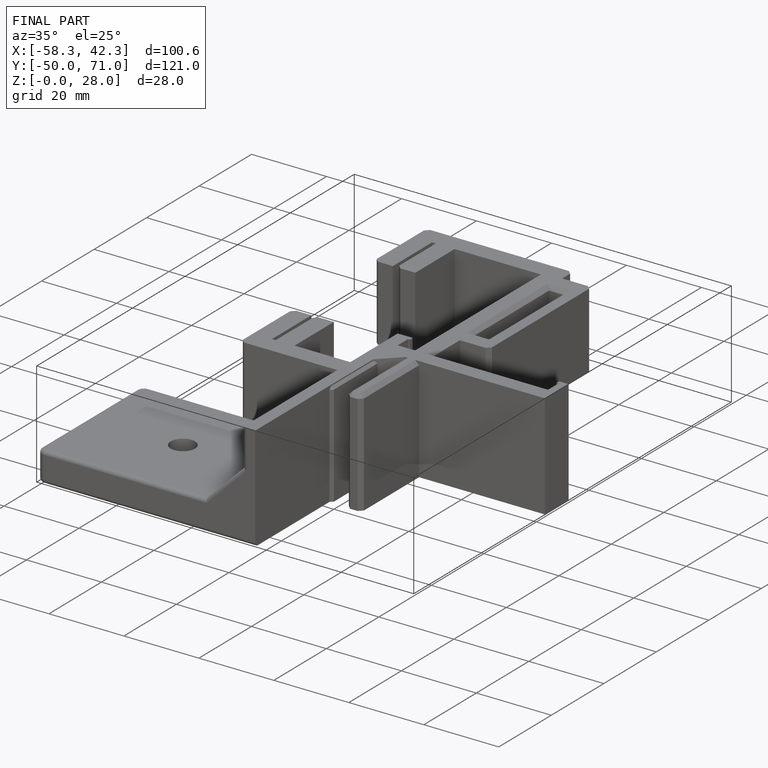
[diagram: finished part — iso view with bounding-box wireframe]
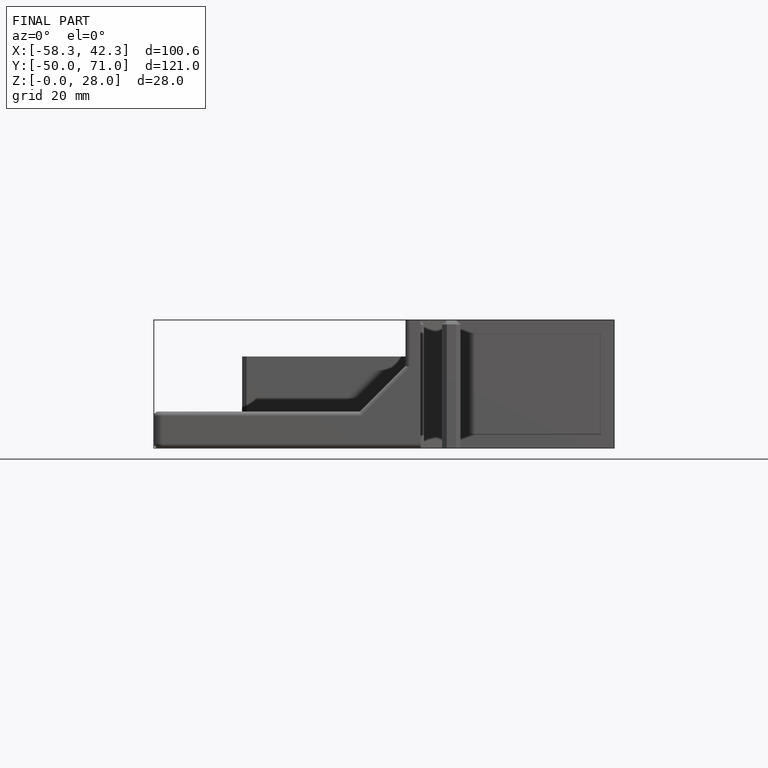
[diagram: finished part — front view with bounding-box wireframe]
